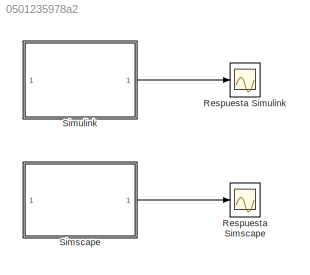
MODEL slx_0501235978a2
KIND model
CONFIG AbsTol = auto
CONFIG EnableMultiTasking = off
CONFIG FixedStep = auto
CONFIG MaxStep = 0.000001
CONFIG MinStep = auto
CONFIG RelTol = 1e-3
CONFIG SampleTimeConstraint = Unconstrained
CONFIG SolverName = ode45
CONFIG StartTime = 0.0
CONFIG StopTime = .01
BLOCK [Scope] Respuesta Simscape
  Floating = off
  NumInputPorts = 1
  ScopeSpecificationString = Simulink.scopes.TimeScopeBlockCfg('CurrentConfiguration', extmgr.ConfigurationSet(extmgr.Configuration('Core','General UI',true),extmgr.Configuration('Core','Source UI',true),extmgr.Configuration('Sources','WiredSimulink',true,'DataLoggingVariableName','ScopeData2'),extmgr.Configuration('Visuals','Time Domain',true,'SerializedDisplays',{struct('MinYLimReal','-7.04982','MaxYLimReal','19.07558','YLa...<+1514ch>
BLOCK [Scope] Respuesta Simulink
  Floating = off
  NumInputPorts = 1
  ScopeSpecificationString = Simulink.scopes.TimeScopeBlockCfg('CurrentConfiguration', extmgr.ConfigurationSet(extmgr.Configuration('Core','General UI',true),extmgr.Configuration('Core','Source UI',true),extmgr.Configuration('Sources','WiredSimulink',true),extmgr.Configuration('Visuals','Time Domain',true,'SerializedDisplays',{struct('MinYLimReal','-7.0816','MaxYLimReal','19.0816','YLabelReal','','MinYLimMag','0.00000','MaxYL...<+1352ch>
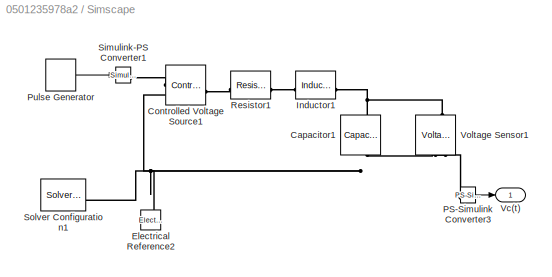
BLOCK [SubSystem] Simscape
BLOCK [Reference] Simscape/Capacitor1  REF=ee_lib/Passive/Capacitor
  NameLocation = left
  SourceBlock = ee_lib/Passive/Capacitor
  SourceType = Capacitor
BLOCK [Reference] Simscape/Controlled Voltage Source1  REF=fl_lib/Electrical/Electrical Sources/Controlled Voltage
Source
  SourceBlock = fl_lib/Electrical/Electrical Sources/Controlled Voltage\nSource
  SourceType = Controlled Voltage\nSource
BLOCK [Reference] Simscape/Electrical Reference2  REF=fl_lib/Electrical/Electrical Elements/Electrical Reference
  LibrarySourceBlock = ee_lib/Connectors &\nReferences/Electrical Reference
  NameLocation = right
  SourceBlock = fl_lib/Electrical/Electrical Elements/Electrical Reference
  SourceType = Electrical Reference
BLOCK [Reference] Simscape/Inductor1  REF=ee_lib/Passive/Inductor
  SourceBlock = ee_lib/Passive/Inductor
  SourceType = Inductor
BLOCK [Reference] Simscape/PS-Simulink Converter3  REF=nesl_utility/PS-Simulink
Converter
  SourceBlock = nesl_utility/PS-Simulink\nConverter
  SourceType = PS-Simulink\nConverter
BLOCK [DiscretePulseGenerator] Simscape/Pulse Generator
  Amplitude = V
  Period = 1/F
  PulseType = Time based
  PulseWidth = CicTra
BLOCK [Reference] Simscape/Resistor1  REF=ee_lib/Passive/Resistor
  NameLocation = top
  SourceBlock = ee_lib/Passive/Resistor
  SourceType = Resistor
BLOCK [Reference] Simscape/Simulink-PS Converter1  REF=nesl_utility/Simulink-PS
Converter
  SourceBlock = nesl_utility/Simulink-PS\nConverter
  SourceType = Simulink-PS\nConverter
BLOCK [Reference] Simscape/Solver Configuration1  REF=nesl_utility/Solver
Configuration
  SourceBlock = nesl_utility/Solver\nConfiguration
  SourceType = Solver\nConfiguration
BLOCK [Outport] Simscape/Vc(t)
BLOCK [Reference] Simscape/Voltage Sensor1  REF=fl_lib/Electrical/Electrical Sensors/Voltage Sensor
  LibrarySourceBlock = ee_lib/Sensors &\nTransducers/Voltage Sensor
  NameLocation = right
  SourceBlock = fl_lib/Electrical/Electrical Sensors/Voltage Sensor
  SourceType = Voltage Sensor
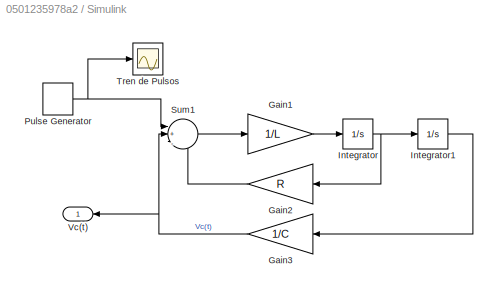
BLOCK [SubSystem] Simulink
BLOCK [Gain] Simulink/Gain1
  Gain = 1/L
BLOCK [Gain] Simulink/Gain2
  Gain = R
  NameLocation = top
BLOCK [Gain] Simulink/Gain3
  Gain = 1/C
  NameLocation = top
BLOCK [Integrator] Simulink/Integrator
BLOCK [Integrator] Simulink/Integrator1
BLOCK [DiscretePulseGenerator] Simulink/Pulse Generator
  Amplitude = V
  Period = 1/F
  PulseType = Time based
  PulseWidth = CicTra
BLOCK [Sum] Simulink/Sum1
  Inputs = |+|-|-
BLOCK [Scope] Simulink/Tren de Pulsos
  Floating = off
  NumInputPorts = 1
  ScopeSpecificationString = Simulink.scopes.TimeScopeBlockCfg('CurrentConfiguration', extmgr.ConfigurationSet(extmgr.Configuration('Core','General UI',true),extmgr.Configuration('Core','Source UI',true),extmgr.Configuration('Sources','WiredSimulink',true,'DataLoggingVariableName','ScopeData1'),extmgr.Configuration('Visuals','Time Domain',true,'SerializedDisplays',{struct('MinYLimReal','-1.5','MaxYLimReal','13.5','YLabelReal'...<+1383ch>
BLOCK [Outport] Simulink/Vc(t)
  NameLocation = top
LINE Simscape/PS-Simulink Converter3:1 -> Simscape/Vc(t):1
LINE Simscape/Pulse Generator:1 -> Simscape/Simulink-PS Converter1:1
LINE Simscape:1 -> Respuesta Simscape:1
LINE Simulink/Gain1:1 -> Simulink/Integrator:1
LINE Simulink/Gain2:1 -> Simulink/Sum1:3
NET Simulink/Gain3:1 -> Simulink/Sum1:2, Simulink/Vc(t):1
LINE Simulink/Integrator1:1 -> Simulink/Gain3:1
NET Simulink/Integrator:1 -> Simulink/Gain2:1, Simulink/Integrator1:1
NET Simulink/Pulse Generator:1 -> Simulink/Sum1:1, Simulink/Tren de Pulsos:1
LINE Simulink/Sum1:1 -> Simulink/Gain1:1
LINE Simulink:1 -> Respuesta Simulink:1
PNET net1: Simscape/Capacitor1:LConn1 -- Simscape/Inductor1:RConn1 -- Simscape/Voltage Sensor1:LConn1
PNET net2: Simscape/Capacitor1:RConn1 -- Simscape/Controlled Voltage Source1:RConn2 -- Simscape/Electrical Reference2:LConn1 -- Simscape/Solver Configuration1:RConn1 -- Simscape/Voltage Sensor1:RConn2
PLINE Simscape/Controlled Voltage Source1:LConn1 -- Simscape/Resistor1:RConn1
PLINE Simscape/Controlled Voltage Source1:RConn1 -- Simscape/Simulink-PS Converter1:RConn1
PLINE Simscape/Inductor1:LConn1 -- Simscape/Resistor1:LConn1
PLINE Simscape/PS-Simulink Converter3:LConn1 -- Simscape/Voltage Sensor1:RConn1
note: NET lines group one-source signal fan-out (src -> all destinations, sorted); 1:1 wires keep LINE; PNET lines group multi-terminal physical nets as a canonical sorted terminal list (undirected conserving connections); 2-terminal nets keep the pairwise PLINE form
